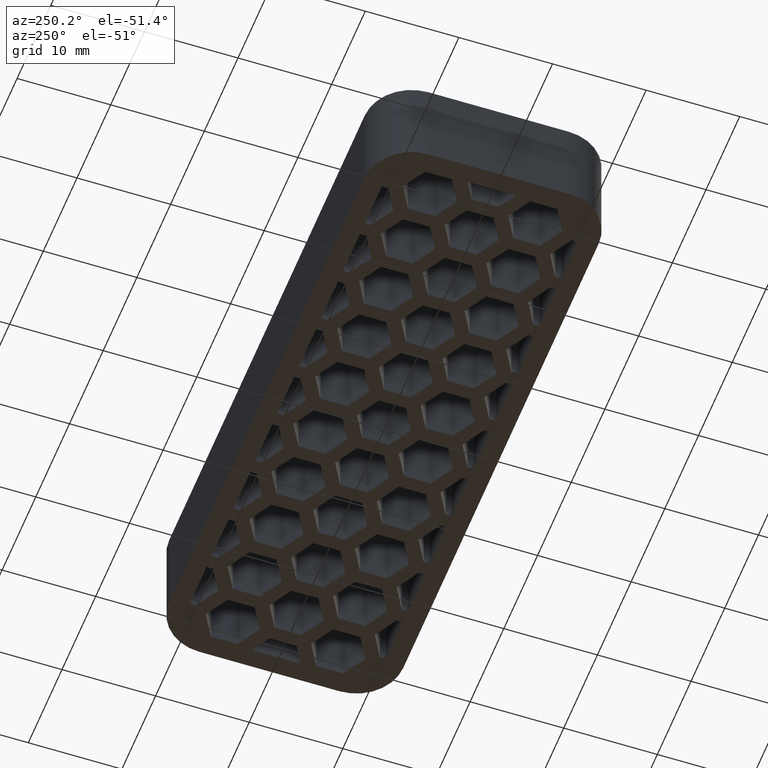
[diagram: clean part render]
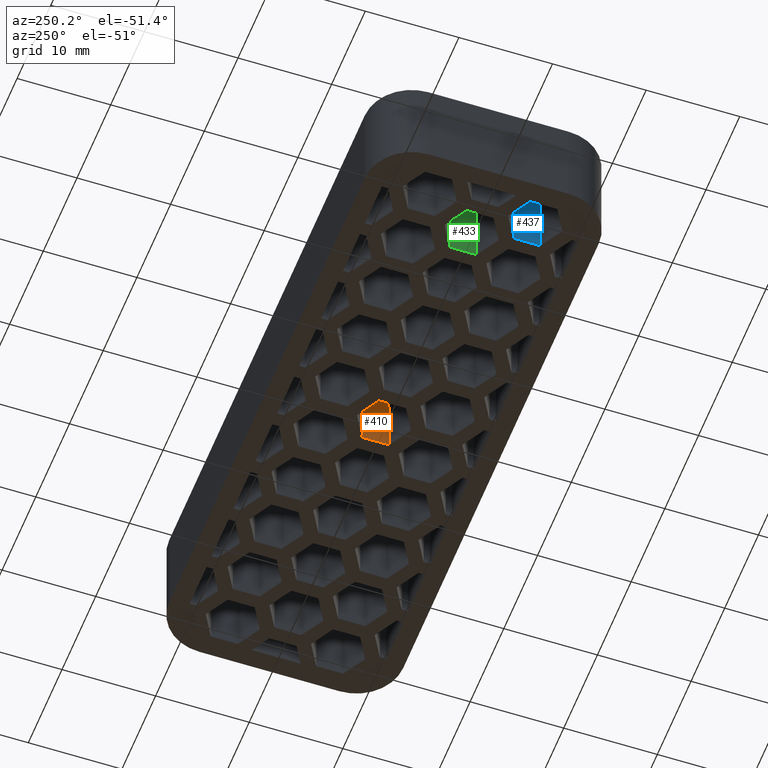
[diagram: same view with three faces highlighted in distinct colors, each labeled with its STEP entity id]
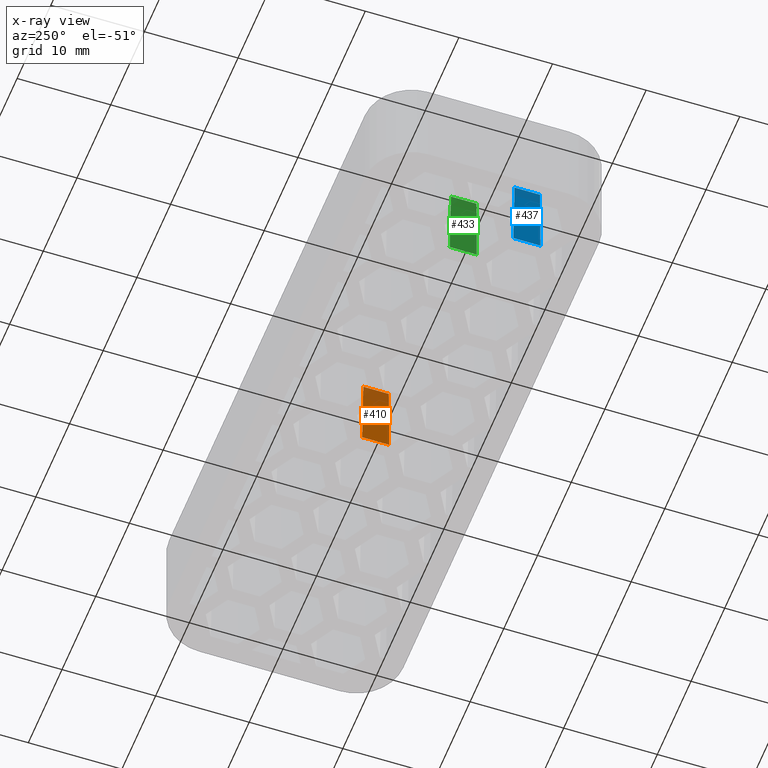
[diagram: x-ray of the same camera — body ghosted, the three highlighted faces saturated]
A machine part, auxiliary view with three faces highlighted in distinct colors.
The next image is the same camera in x-ray (body ghosted, the three faces saturated) — at least one of them is partly hidden behind the body in this view.
Their STEP definitions:

[orange] entity #410 — the highlighted planar face has unit normal (0.9998, 0, 0.0175).
#410 = ADVANCED_FACE( '', ( #1172 ), #1173, .F. );
#1172 = FACE_OUTER_BOUND( '', #1966, .T. );
#1173 = PLANE( '', #1967 );
#1966 = EDGE_LOOP( '', ( #4761, #4762, #4763, #4764 ) );
#1967 = AXIS2_PLACEMENT_3D( '', #4765, #4766, #4767 );
#4761 = ORIENTED_EDGE( '', *, *, #5242, .T. );
#4762 = ORIENTED_EDGE( '', *, *, #5896, .F. );
#4763 = ORIENTED_EDGE( '', *, *, #5715, .F. );
#4764 = ORIENTED_EDGE( '', *, *, #5722, .T. );
#4765 = CARTESIAN_POINT( '', ( 2.50000000000001, -1.44337567297406, 1.39661661588183E-014 ) );
#4766 = DIRECTION( '', ( 0.999847695156391, 5.00592885917089E-016, 0.0174524064372835 ) );
#4767 = DIRECTION( '', ( -0.0174524064372835, 6.12209920171588E-017, 0.999847695156391 ) );
#5242 = EDGE_CURVE( '', #6414, #6415, #6416, .T. );
#5715 = EDGE_CURVE( '', #7211, #7212, #7213, .T. );
#5722 = EDGE_CURVE( '', #7211, #6414, #7224, .T. );
#5896 = EDGE_CURVE( '', #7212, #6415, #7444, .T. );
#6414 = VERTEX_POINT( '', #8202 );
#6415 = VERTEX_POINT( '', #8203 );
#6416 = LINE( '', #8204, #8205 );
#7211 = VERTEX_POINT( '', #9468 );
#7212 = VERTEX_POINT( '', #9469 );
#7213 = LINE( '', #9470, #9471 );
#7224 = LINE( '', #9488, #9489 );
#7444 = LINE( '', #9880, #9881 );
#8202 = CARTESIAN_POINT( '', ( 2.50000000000000, 1.44337567297407, 1.37894094568106E-014 ) );
#8203 = CARTESIAN_POINT( '', ( 2.50000000000001, -1.44337567297406, 1.39661661588183E-014 ) );
#8204 = CARTESIAN_POINT( '', ( 2.50000000000001, -1.44337567297406, 1.39661661588183E-014 ) );
#8205 = VECTOR( '', #10198, 1000.00000000000 );
#9468 = CARTESIAN_POINT( '', ( 2.36035948057426, 1.36275418149384, 8.00000000000002 ) );
#9469 = CARTESIAN_POINT( '', ( 2.36035948057426, -1.36275418149383, 8.00000000000002 ) );
#9470 = CARTESIAN_POINT( '', ( 2.36035948057427, -1.44337567297406, 8.00000000000002 ) );
#9471 = VECTOR( '', #10679, 1000.00000000000 );
#9488 = CARTESIAN_POINT( '', ( 2.50025379630774, 1.44352220234066, -0.0145399807321285 ) );
#9489 = VECTOR( '', #10686, 1000.00000000000 );
#9880 = CARTESIAN_POINT( '', ( 2.50000000000001, -1.44337567297406, 1.39661661588183E-014 ) );
#9881 = VECTOR( '', #10864, 1000.00000000000 );
#10198 = DIRECTION( '', ( 4.99600361081321E-016, -1.00000000000000, 6.12303176911189E-017 ) );
#10679 = DIRECTION( '', ( 4.99600361081321E-016, -1.00000000000000, 6.12303176911189E-017 ) );
#10686 = DIRECTION( '', ( 0.0174515205435363, 0.0100756400835789, -0.999796942337605 ) );
#10864 = DIRECTION( '', ( 0.0174515205435363, -0.0100756400835790, -0.999796942337605 ) );

[blue] entity #437 — the highlighted planar face has unit normal (0.9998, 0, 0.0175).
#437 = ADVANCED_FACE( '', ( #1226 ), #1227, .F. );
#1226 = FACE_OUTER_BOUND( '', #2020, .T. );
#1227 = PLANE( '', #2021 );
#2020 = EDGE_LOOP( '', ( #4950, #4951, #4952, #4953 ) );
#2021 = AXIS2_PLACEMENT_3D( '', #4954, #4955, #4956 );
#4950 = ORIENTED_EDGE( '', *, *, #5261, .T. );
#4951 = ORIENTED_EDGE( '', *, *, #5915, .F. );
#4952 = ORIENTED_EDGE( '', *, *, #5784, .F. );
#4953 = ORIENTED_EDGE( '', *, *, #5793, .T. );
#4954 = CARTESIAN_POINT( '', ( -26.7500000000000, -9.81462432702594, 1.44787403733772E-014 ) );
#4955 = DIRECTION( '', ( 0.999847695156391, 6.67100975759242E-016, 0.0174524064372835 ) );
#4956 = DIRECTION( '', ( -0.0174524064372835, 6.12209920171588E-017, 0.999847695156391 ) );
#5261 = EDGE_CURVE( '', #6443, #6451, #6453, .T. );
#5784 = EDGE_CURVE( '', #7324, #7326, #7327, .T. );
#5793 = EDGE_CURVE( '', #7324, #6443, #7340, .T. );
#5915 = EDGE_CURVE( '', #7326, #6451, #7463, .T. );
#6443 = VERTEX_POINT( '', #8245 );
#6451 = VERTEX_POINT( '', #8257 );
#6453 = LINE( '', #8260, #8261 );
#7324 = VERTEX_POINT( '', #9649 );
#7326 = VERTEX_POINT( '', #9652 );
#7327 = LINE( '', #9653, #9654 );
#7340 = LINE( '', #9674, #9675 );
#7463 = LINE( '', #9918, #9919 );
#8245 = CARTESIAN_POINT( '', ( -26.7500000000000, -4.18578945162478, 1.41340850257256E-014 ) );
#8257 = CARTESIAN_POINT( '', ( -26.7500000000000, -7.07254079757292, 1.43108417277332E-014 ) );
#8260 = CARTESIAN_POINT( '', ( -26.7500000000000, -9.81462432702594, 1.44787403733772E-014 ) );
#8261 = VECTOR( '', #10217, 1000.00000000000 );
#9649 = CARTESIAN_POINT( '', ( -26.8896405194257, -4.26641094310501, 8.00000000000002 ) );
#9652 = CARTESIAN_POINT( '', ( -26.8896405194257, -6.99191930609269, 8.00000000000002 ) );
#9653 = CARTESIAN_POINT( '', ( -26.8896405194257, -9.81462432702594, 8.00000000000002 ) );
#9654 = VECTOR( '', #10748, 1000.00000000000 );
#9674 = CARTESIAN_POINT( '', ( -26.7500000290347, -4.18578946838799, 1.66339821109457E-006 ) );
#9675 = VECTOR( '', #10759, 1000.00000000000 );
#9918 = CARTESIAN_POINT( '', ( -26.7495178450848, -7.07281916984303, -0.0276226365946704 ) );
#9919 = VECTOR( '', #10883, 1000.00000000000 );
#10217 = DIRECTION( '', ( 6.66133814775094E-016, -1.00000000000000, 6.12303176911189E-017 ) );
#10748 = DIRECTION( '', ( 6.66133814775094E-016, -1.00000000000000, 6.12303176911189E-017 ) );
#10759 = DIRECTION( '', ( 0.0174515205435363, 0.0100756400835789, -0.999796942337605 ) );
#10883 = DIRECTION( '', ( 0.0174515205435363, -0.0100756400835790, -0.999796942337605 ) );

[green] entity #433 — the highlighted planar face has unit normal (0.9998, 0, 0.0175).
#433 = ADVANCED_FACE( '', ( #1218 ), #1219, .F. );
#1218 = FACE_OUTER_BOUND( '', #2012, .T. );
#1219 = PLANE( '', #2013 );
#2012 = EDGE_LOOP( '', ( #4922, #4923, #4924, #4925 ) );
#2013 = AXIS2_PLACEMENT_3D( '', #4926, #4927, #4928 );
#4922 = ORIENTED_EDGE( '', *, *, #5267, .T. );
#4923 = ORIENTED_EDGE( '', *, *, #5912, .F. );
#4924 = ORIENTED_EDGE( '', *, *, #5775, .F. );
#4925 = ORIENTED_EDGE( '', *, *, #5789, .T. );
#4926 = CARTESIAN_POINT( '', ( -23.5000000000000, -9.81462432702594, 1.44787403733772E-014 ) );
#4927 = DIRECTION( '', ( 0.999847695156391, 5.00592885917089E-016, 0.0174524064372835 ) );
#4928 = DIRECTION( '', ( -0.0174524064372835, 6.12209920171588E-017, 0.999847695156391 ) );
#5267 = EDGE_CURVE( '', #6455, #6463, #6465, .T. );
#5775 = EDGE_CURVE( '', #7309, #7311, #7312, .T. );
#5789 = EDGE_CURVE( '', #7309, #6455, #7335, .T. );
#5912 = EDGE_CURVE( '', #7311, #6463, #7460, .T. );
#6455 = VERTEX_POINT( '', #8263 );
#6463 = VERTEX_POINT( '', #8275 );
#6465 = LINE( '', #8278, #8279 );
#7309 = VERTEX_POINT( '', #9625 );
#7311 = VERTEX_POINT( '', #9628 );
#7312 = LINE( '', #9629, #9630 );
#7335 = LINE( '', #9666, #9667 );
#7460 = LINE( '', #9912, #9913 );
#8263 = CARTESIAN_POINT( '', ( -23.5000000000000, 1.44337567297407, 1.37894094568106E-014 ) );
#8275 = CARTESIAN_POINT( '', ( -23.5000000000000, -1.44337567297406, 1.39661661588183E-014 ) );
#8278 = CARTESIAN_POINT( '', ( -23.5000000000000, -9.81462432702594, 1.44787403733772E-014 ) );
#8279 = VECTOR( '', #10223, 1000.00000000000 );
#9625 = CARTESIAN_POINT( '', ( -23.6396405194257, 1.36275418149384, 8.00000000000002 ) );
#9628 = CARTESIAN_POINT( '', ( -23.6396405194257, -1.36275418149383, 8.00000000000002 ) );
#9629 = CARTESIAN_POINT( '', ( -23.6396405194257, -9.81462432702594, 8.00000000000002 ) );
#9630 = VECTOR( '', #10739, 1000.00000000000 );
#9666 = CARTESIAN_POINT( '', ( -23.5000000290347, 1.44337565621086, 1.66339821074990E-006 ) );
#9667 = VECTOR( '', #10753, 1000.00000000000 );
#9912 = CARTESIAN_POINT( '', ( -23.4985280394846, -1.44422550977387, -0.0843285614500199 ) );
#9913 = VECTOR( '', #10880, 1000.00000000000 );
#10223 = DIRECTION( '', ( 4.99600361081321E-016, -1.00000000000000, 6.12303176911189E-017 ) );
#10739 = DIRECTION( '', ( 4.99600361081321E-016, -1.00000000000000, 6.12303176911189E-017 ) );
#10753 = DIRECTION( '', ( 0.0174515205435363, 0.0100756400835789, -0.999796942337605 ) );
#10880 = DIRECTION( '', ( 0.0174515205435363, -0.0100756400835790, -0.999796942337605 ) );